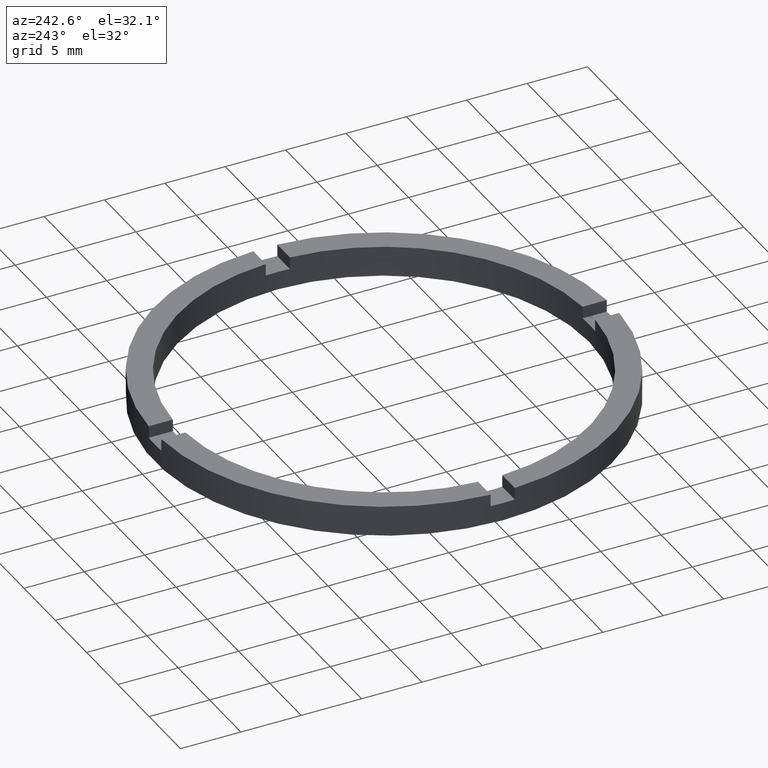
[diagram: clean part render]
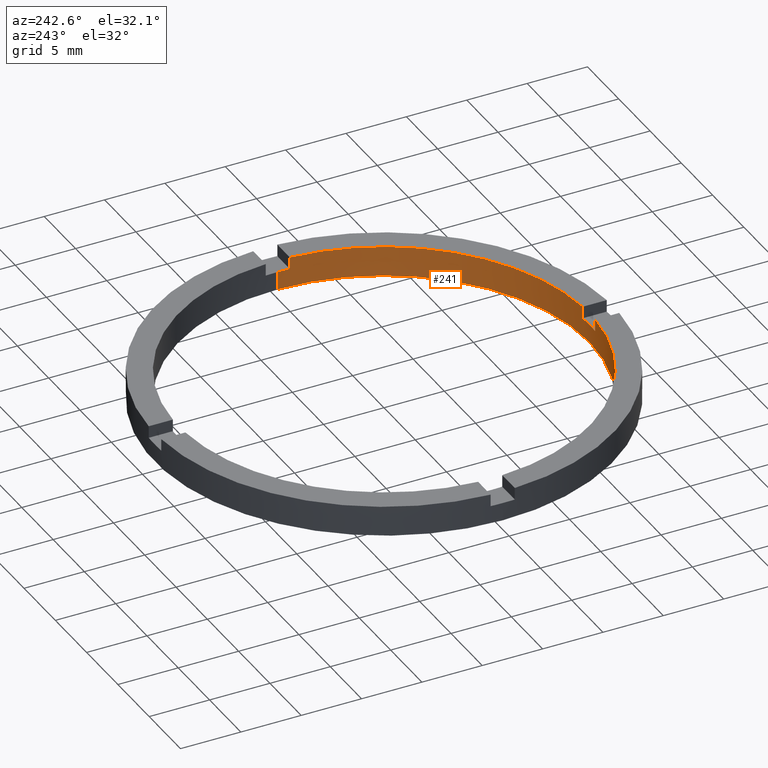
[diagram: same view with one face highlighted and labeled with its STEP entity id]
A machine part, auxiliary view. The second image highlights one B-rep face of the part: STEP entity #241.
In plain terms, the highlighted cylindrical surface (partial cylindrical patch) has radius 17 mm, axis along (-0, -0, -1).
Its self-contained STEP definition (entity closure, byte-faithful):
#2 = AXIS2_PLACEMENT_3D ( 'NONE', #350, #239, #781 ) ;
#4 = DIRECTION ( 'NONE',  ( -0.000000000000000000, -0.000000000000000000, -1.000000000000000000 ) ) ;
#11 = CIRCLE ( 'NONE', #429, 17.00000000000000000 ) ;
#14 = ORIENTED_EDGE ( 'NONE', *, *, #573, .T. ) ;
#17 = EDGE_CURVE ( 'NONE', #726, #559, #122, .T. ) ;
#18 = VERTEX_POINT ( 'NONE', #624 ) ;
#20 = VERTEX_POINT ( 'NONE', #400 ) ;
#38 = LINE ( 'NONE', #456, #305 ) ;
#42 = EDGE_LOOP ( 'NONE', ( #555, #752, #303, #221, #732, #494, #14, #211, #728, #754, #497, #282 ) ) ;
#60 = DIRECTION ( 'NONE',  ( 1.000000000000000000, 0.000000000000000000, 0.000000000000000000 ) ) ;
#63 = VECTOR ( 'NONE', #670, 1000.000000000000000 ) ;
#70 = CARTESIAN_POINT ( 'NONE',  ( -17.00000000000000000, 0.000000000000000000, 1.500000000000000000 ) ) ;
#73 = CARTESIAN_POINT ( 'NONE',  ( 0.000000000000000000, 0.000000000000000000, 1.500000000000000000 ) ) ;
#75 = EDGE_CURVE ( 'NONE', #569, #539, #107, .T. ) ;
#85 = CARTESIAN_POINT ( 'NONE',  ( 17.00000000000000000, 2.081899558550500280E-15, 1.500000000000000000 ) ) ;
#87 = CARTESIAN_POINT ( 'NONE',  ( -1.000000000000161871, -16.97056274847712842, 2.500000000000000000 ) ) ;
#88 = EDGE_CURVE ( 'NONE', #479, #18, #114, .T. ) ;
#92 = DIRECTION ( 'NONE',  ( -0.000000000000000000, -0.000000000000000000, -1.000000000000000000 ) ) ;
#95 = DIRECTION ( 'NONE',  ( 1.000000000000000000, 0.000000000000000000, 0.000000000000000000 ) ) ;
#107 = CIRCLE ( 'NONE', #677, 17.00000000000000000 ) ;
#111 = AXIS2_PLACEMENT_3D ( 'NONE', #487, #782, #60 ) ;
#114 = CIRCLE ( 'NONE', #166, 17.00000000000000000 ) ;
#122 = LINE ( 'NONE', #335, #635 ) ;
#166 = AXIS2_PLACEMENT_3D ( 'NONE', #73, #525, #675 ) ;
#192 = EDGE_CURVE ( 'NONE', #479, #449, #629, .T. ) ;
#201 = DIRECTION ( 'NONE',  ( -0.000000000000000000, 0.000000000000000000, 1.000000000000000000 ) ) ;
#210 = VERTEX_POINT ( 'NONE', #745 ) ;
#211 = ORIENTED_EDGE ( 'NONE', *, *, #17, .F. ) ;
#221 = ORIENTED_EDGE ( 'NONE', *, *, #192, .F. ) ;
#233 = VERTEX_POINT ( 'NONE', #254 ) ;
#239 = DIRECTION ( 'NONE',  ( -0.000000000000000000, -0.000000000000000000, -1.000000000000000000 ) ) ;
#241 = ADVANCED_FACE ( 'NONE', ( #379 ), #373, .F. ) ;
#249 = CARTESIAN_POINT ( 'NONE',  ( 16.97056274847713198, -1.000000000000158762, 2.500000000000000000 ) ) ;
#254 = CARTESIAN_POINT ( 'NONE',  ( 0.9999999999998373523, -16.97056274847714974, 1.500000000000000000 ) ) ;
#259 = CARTESIAN_POINT ( 'NONE',  ( 0.9999999999998377964, -16.97056274847715329, 2.500000000000000000 ) ) ;
#261 = CARTESIAN_POINT ( 'NONE',  ( 16.97056274847713198, -1.000000000000158762, 1.500000000000000000 ) ) ;
#267 = CARTESIAN_POINT ( 'NONE',  ( 0.000000000000000000, 0.000000000000000000, 1.500000000000000000 ) ) ;
#270 = VERTEX_POINT ( 'NONE', #249 ) ;
#271 = LINE ( 'NONE', #771, #523 ) ;
#282 = ORIENTED_EDGE ( 'NONE', *, *, #676, .F. ) ;
#297 = LINE ( 'NONE', #259, #554 ) ;
#303 = ORIENTED_EDGE ( 'NONE', *, *, #747, .F. ) ;
#305 = VECTOR ( 'NONE', #647, 1000.000000000000000 ) ;
#317 = CIRCLE ( 'NONE', #111, 17.00000000000000000 ) ;
#323 = LINE ( 'NONE', #425, #63 ) ;
#329 = DIRECTION ( 'NONE',  ( 0.000000000000000000, 0.000000000000000000, 1.000000000000000000 ) ) ;
#335 = CARTESIAN_POINT ( 'NONE',  ( -1.000000000000162315, -16.97056274847713198, 2.500000000000000000 ) ) ;
#350 = CARTESIAN_POINT ( 'NONE',  ( 0.000000000000000000, 0.000000000000000000, 2.500000000000000000 ) ) ;
#360 = VECTOR ( 'NONE', #4, 1000.000000000000000 ) ;
#373 = CYLINDRICAL_SURFACE ( 'NONE', #2, 17.00000000000000000 ) ;
#379 = FACE_OUTER_BOUND ( 'NONE', #42, .T. ) ;
#386 = DIRECTION ( 'NONE',  ( -0.000000000000000000, -0.000000000000000000, -1.000000000000000000 ) ) ;
#391 = CARTESIAN_POINT ( 'NONE',  ( 0.000000000000000000, 0.000000000000000000, 2.500000000000000000 ) ) ;
#397 = DIRECTION ( 'NONE',  ( 0.000000000000000000, 0.000000000000000000, 1.000000000000000000 ) ) ;
#400 = CARTESIAN_POINT ( 'NONE',  ( 17.00000000000000000, 2.081899558550500280E-15, 0.000000000000000000 ) ) ;
#401 = CARTESIAN_POINT ( 'NONE',  ( 0.000000000000000000, 0.000000000000000000, 1.500000000000000000 ) ) ;
#425 = CARTESIAN_POINT ( 'NONE',  ( 17.00000000000000000, 2.081899558550500280E-15, 2.500000000000000000 ) ) ;
#429 = AXIS2_PLACEMENT_3D ( 'NONE', #401, #201, #634 ) ;
#449 = VERTEX_POINT ( 'NONE', #472 ) ;
#454 = DIRECTION ( 'NONE',  ( 0.000000000000000000, 0.000000000000000000, 1.000000000000000000 ) ) ;
#456 = CARTESIAN_POINT ( 'NONE',  ( 16.97056274847713198, -1.000000000000158762, 2.500000000000000000 ) ) ;
#472 = CARTESIAN_POINT ( 'NONE',  ( -17.00000000000000000, 0.000000000000000000, 0.000000000000000000 ) ) ;
#476 = CARTESIAN_POINT ( 'NONE',  ( -1.000000000000161871, -16.97056274847712842, 1.500000000000000000 ) ) ;
#479 = VERTEX_POINT ( 'NONE', #70 ) ;
#487 = CARTESIAN_POINT ( 'NONE',  ( 0.000000000000000000, 0.000000000000000000, 0.000000000000000000 ) ) ;
#494 = ORIENTED_EDGE ( 'NONE', *, *, #510, .F. ) ;
#497 = ORIENTED_EDGE ( 'NONE', *, *, #529, .T. ) ;
#510 = EDGE_CURVE ( 'NONE', #740, #18, #271, .T. ) ;
#523 = VECTOR ( 'NONE', #92, 1000.000000000000000 ) ;
#525 = DIRECTION ( 'NONE',  ( 0.000000000000000000, 0.000000000000000000, 1.000000000000000000 ) ) ;
#529 = EDGE_CURVE ( 'NONE', #210, #270, #532, .T. ) ;
#532 = CIRCLE ( 'NONE', #711, 17.00000000000000000 ) ;
#539 = VERTEX_POINT ( 'NONE', #85 ) ;
#549 = CIRCLE ( 'NONE', #681, 17.00000000000000000 ) ;
#554 = VECTOR ( 'NONE', #386, 1000.000000000000000 ) ;
#555 = ORIENTED_EDGE ( 'NONE', *, *, #75, .T. ) ;
#559 = VERTEX_POINT ( 'NONE', #87 ) ;
#565 = EDGE_CURVE ( 'NONE', #726, #233, #11, .T. ) ;
#569 = VERTEX_POINT ( 'NONE', #261 ) ;
#573 = EDGE_CURVE ( 'NONE', #740, #559, #549, .T. ) ;
#601 = CARTESIAN_POINT ( 'NONE',  ( -16.97056274847713908, -1.000000000000023981, 2.500000000000000000 ) ) ;
#604 = EDGE_CURVE ( 'NONE', #210, #233, #297, .T. ) ;
#609 = CARTESIAN_POINT ( 'NONE',  ( -17.00000000000000000, 0.000000000000000000, 2.500000000000000000 ) ) ;
#624 = CARTESIAN_POINT ( 'NONE',  ( -16.97056274847713908, -1.000000000000023981, 1.500000000000000000 ) ) ;
#628 = CARTESIAN_POINT ( 'NONE',  ( 0.000000000000000000, 0.000000000000000000, 2.500000000000000000 ) ) ;
#629 = LINE ( 'NONE', #609, #360 ) ;
#634 = DIRECTION ( 'NONE',  ( 1.000000000000000000, 0.000000000000000000, 0.000000000000000000 ) ) ;
#635 = VECTOR ( 'NONE', #329, 1000.000000000000000 ) ;
#647 = DIRECTION ( 'NONE',  ( 0.000000000000000000, 0.000000000000000000, 1.000000000000000000 ) ) ;
#670 = DIRECTION ( 'NONE',  ( -0.000000000000000000, -0.000000000000000000, -1.000000000000000000 ) ) ;
#675 = DIRECTION ( 'NONE',  ( 1.000000000000000000, 0.000000000000000000, 0.000000000000000000 ) ) ;
#676 = EDGE_CURVE ( 'NONE', #569, #270, #38, .T. ) ;
#677 = AXIS2_PLACEMENT_3D ( 'NONE', #267, #454, #95 ) ;
#681 = AXIS2_PLACEMENT_3D ( 'NONE', #391, #397, #766 ) ;
#691 = DIRECTION ( 'NONE',  ( 0.000000000000000000, 0.000000000000000000, 1.000000000000000000 ) ) ;
#711 = AXIS2_PLACEMENT_3D ( 'NONE', #628, #691, #760 ) ;
#726 = VERTEX_POINT ( 'NONE', #476 ) ;
#728 = ORIENTED_EDGE ( 'NONE', *, *, #565, .T. ) ;
#732 = ORIENTED_EDGE ( 'NONE', *, *, #88, .T. ) ;
#733 = EDGE_CURVE ( 'NONE', #539, #20, #323, .T. ) ;
#740 = VERTEX_POINT ( 'NONE', #601 ) ;
#745 = CARTESIAN_POINT ( 'NONE',  ( 0.9999999999998373523, -16.97056274847714974, 2.500000000000000000 ) ) ;
#747 = EDGE_CURVE ( 'NONE', #449, #20, #317, .T. ) ;
#752 = ORIENTED_EDGE ( 'NONE', *, *, #733, .T. ) ;
#754 = ORIENTED_EDGE ( 'NONE', *, *, #604, .F. ) ;
#760 = DIRECTION ( 'NONE',  ( 1.000000000000000000, 0.000000000000000000, 0.000000000000000000 ) ) ;
#766 = DIRECTION ( 'NONE',  ( 1.000000000000000000, 0.000000000000000000, 0.000000000000000000 ) ) ;
#771 = CARTESIAN_POINT ( 'NONE',  ( -16.97056274847713908, -1.000000000000023981, 2.500000000000000000 ) ) ;
#781 = DIRECTION ( 'NONE',  ( -1.000000000000000000, 0.000000000000000000, 0.000000000000000000 ) ) ;
#782 = DIRECTION ( 'NONE',  ( 0.000000000000000000, 0.000000000000000000, 1.000000000000000000 ) ) ;